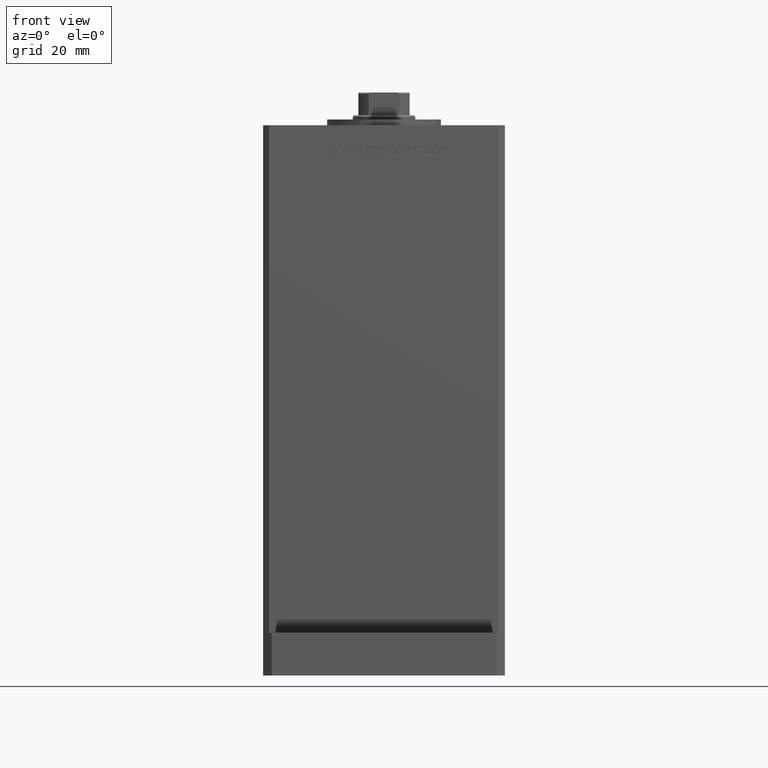
[diagram: clean part render]
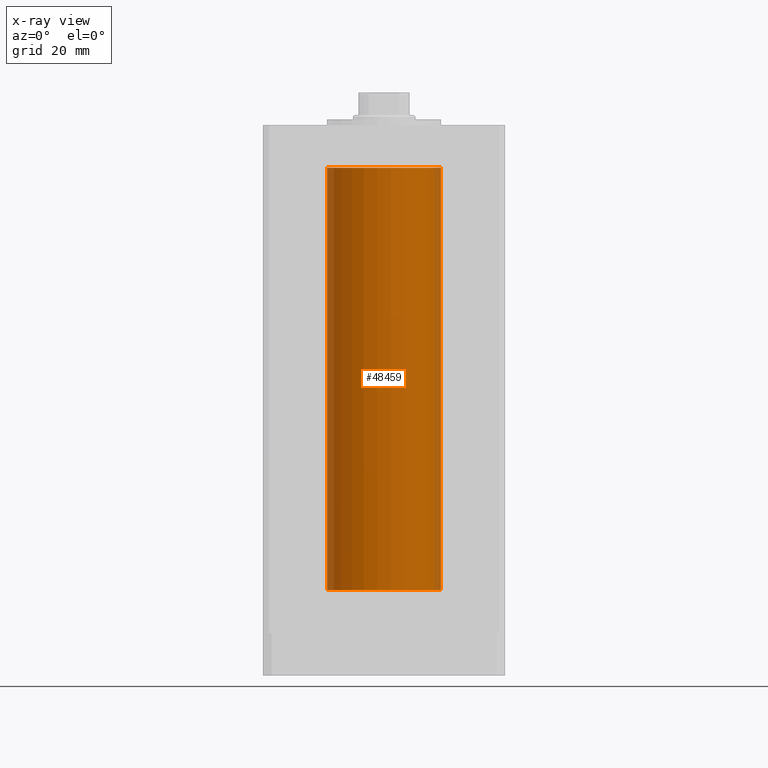
[diagram: x-ray — body ghosted, one internal face saturated and labeled with its STEP entity id]
A machine part, front view, then the same camera in x-ray: the body is ghosted and one INTERNAL B-rep face — a face not visible from any outside direction — is saturated and labeled: STEP entity #48459.
In plain terms, the highlighted cylindrical surface (partial cylindrical patch) has radius 20 mm, axis along (-0, -0, -1).
Its self-contained STEP definition (entity closure, byte-faithful):
#3194 = EDGE_CURVE ( 'NONE', #7995, #17505, #37386, .T. ) ;
#3324 = DIRECTION ( 'NONE',  ( -1.000000000000000000, 0.000000000000000000, 0.000000000000000000 ) ) ;
#3776 = AXIS2_PLACEMENT_3D ( 'NONE', #19921, #53023, #32537 ) ;
#5165 = ORIENTED_EDGE ( 'NONE', *, *, #17006, .T. ) ;
#5636 = LINE ( 'NONE', #30700, #41600 ) ;
#7248 = EDGE_LOOP ( 'NONE', ( #33377, #5165, #39914, #38295 ) ) ;
#7995 = VERTEX_POINT ( 'NONE', #28700 ) ;
#9162 = CARTESIAN_POINT ( 'NONE',  ( -20.00000000000000000, 0.000000000000000000, 0.000000000000000000 ) ) ;
#10411 = CARTESIAN_POINT ( 'NONE',  ( 20.00000000000000000, 2.449293598294706513E-15, 148.5000000000000000 ) ) ;
#10500 = CARTESIAN_POINT ( 'NONE',  ( 0.000000000000000000, 0.000000000000000000, 0.000000000000000000 ) ) ;
#13949 = LINE ( 'NONE', #10411, #36756 ) ;
#15224 = AXIS2_PLACEMENT_3D ( 'NONE', #53197, #40789, #3324 ) ;
#17006 = EDGE_CURVE ( 'NONE', #17505, #19729, #13949, .T. ) ;
#17505 = VERTEX_POINT ( 'NONE', #35690 ) ;
#18342 = DIRECTION ( 'NONE',  ( -0.000000000000000000, -0.000000000000000000, -1.000000000000000000 ) ) ;
#19729 = VERTEX_POINT ( 'NONE', #21597 ) ;
#19767 = VERTEX_POINT ( 'NONE', #9162 ) ;
#19921 = CARTESIAN_POINT ( 'NONE',  ( 0.000000000000000000, 0.000000000000000000, 148.5000000000000000 ) ) ;
#21597 = CARTESIAN_POINT ( 'NONE',  ( 20.00000000000000000, 2.449293598294706513E-15, 0.000000000000000000 ) ) ;
#23717 = DIRECTION ( 'NONE',  ( -0.000000000000000000, 0.000000000000000000, 1.000000000000000000 ) ) ;
#28700 = CARTESIAN_POINT ( 'NONE',  ( -20.00000000000000000, 0.000000000000000000, 148.5000000000000000 ) ) ;
#30361 = DIRECTION ( 'NONE',  ( -0.000000000000000000, -0.000000000000000000, -1.000000000000000000 ) ) ;
#30700 = CARTESIAN_POINT ( 'NONE',  ( -20.00000000000000000, 0.000000000000000000, 148.5000000000000000 ) ) ;
#31232 = CIRCLE ( 'NONE', #41569, 20.00000000000000000 ) ;
#32537 = DIRECTION ( 'NONE',  ( 1.000000000000000000, 0.000000000000000000, 0.000000000000000000 ) ) ;
#33377 = ORIENTED_EDGE ( 'NONE', *, *, #3194, .T. ) ;
#33767 = EDGE_CURVE ( 'NONE', #19767, #19729, #31232, .T. ) ;
#35285 = DIRECTION ( 'NONE',  ( 1.000000000000000000, 0.000000000000000000, 0.000000000000000000 ) ) ;
#35687 = FACE_OUTER_BOUND ( 'NONE', #7248, .T. ) ;
#35690 = CARTESIAN_POINT ( 'NONE',  ( 20.00000000000000000, 2.449293598294706513E-15, 148.5000000000000000 ) ) ;
#36756 = VECTOR ( 'NONE', #30361, 1000.000000000000000 ) ;
#36761 = CYLINDRICAL_SURFACE ( 'NONE', #15224, 20.00000000000000000 ) ;
#37386 = CIRCLE ( 'NONE', #3776, 20.00000000000000000 ) ;
#38295 = ORIENTED_EDGE ( 'NONE', *, *, #40081, .F. ) ;
#39914 = ORIENTED_EDGE ( 'NONE', *, *, #33767, .F. ) ;
#40081 = EDGE_CURVE ( 'NONE', #7995, #19767, #5636, .T. ) ;
#40789 = DIRECTION ( 'NONE',  ( -0.000000000000000000, -0.000000000000000000, -1.000000000000000000 ) ) ;
#41569 = AXIS2_PLACEMENT_3D ( 'NONE', #10500, #23717, #35285 ) ;
#41600 = VECTOR ( 'NONE', #18342, 1000.000000000000000 ) ;
#48459 = ADVANCED_FACE ( 'NONE', ( #35687 ), #36761, .F. ) ;
#53023 = DIRECTION ( 'NONE',  ( -0.000000000000000000, 0.000000000000000000, 1.000000000000000000 ) ) ;
#53197 = CARTESIAN_POINT ( 'NONE',  ( 0.000000000000000000, 0.000000000000000000, 148.5000000000000000 ) ) ;